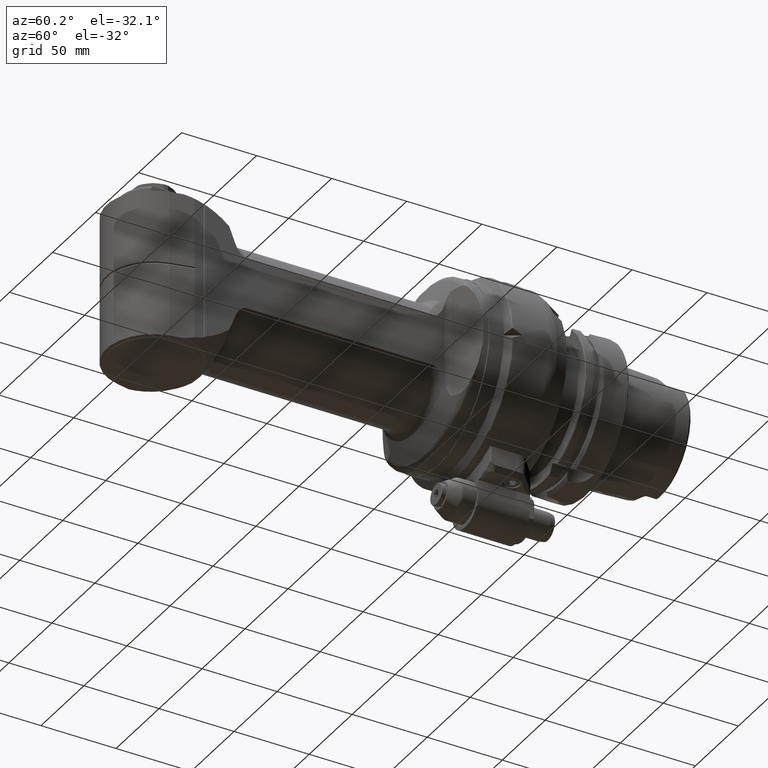
[diagram: clean part render]
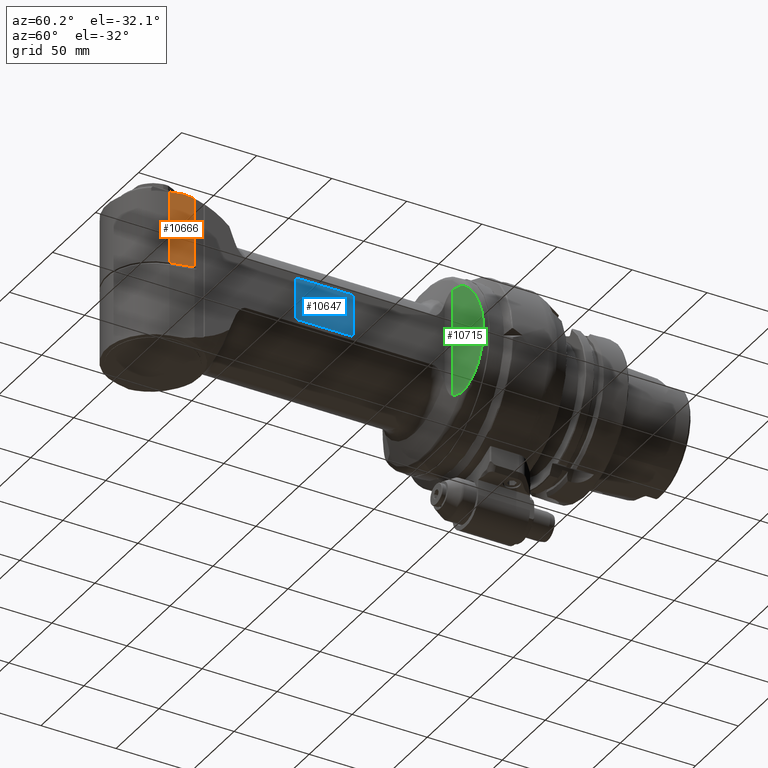
[diagram: same view with three faces highlighted in distinct colors, each labeled with its STEP entity id]
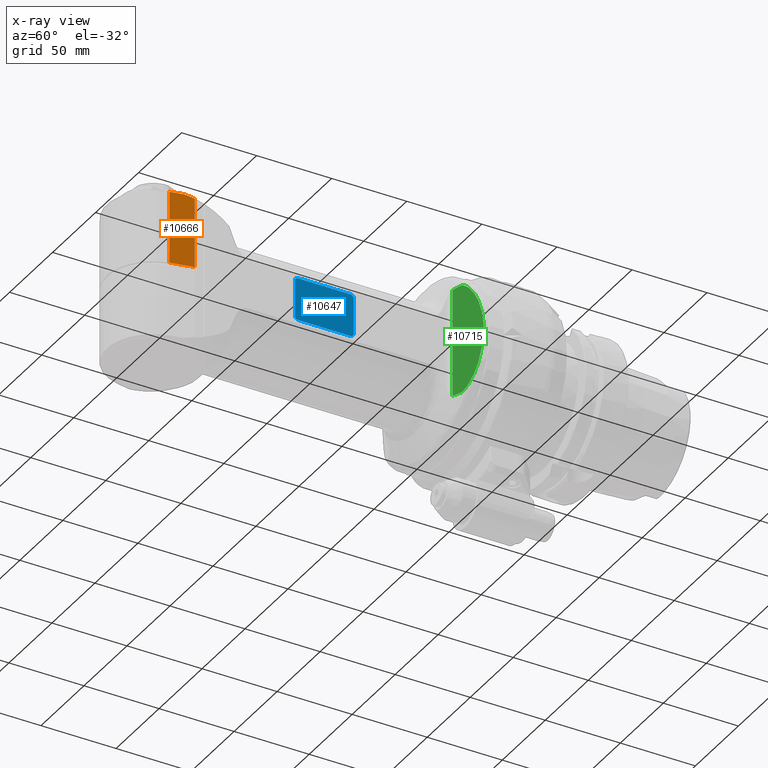
[diagram: x-ray of the same camera — body ghosted, the three highlighted faces saturated]
A machine part, auxiliary view with three faces highlighted in distinct colors.
The next image is the same camera in x-ray (body ghosted, the three faces saturated) — at least one of them is partly hidden behind the body in this view.
Their STEP definitions:

[orange] entity #10666 — the highlighted planar face has unit normal (-0.9781, 0.2079, -0).
#198=ELLIPSE('',#11733,1321.21671135135,153.398067958537);
#368=B_SPLINE_CURVE_WITH_KNOTS('',3,(#33116,#33117,#33118,#33119),
 .UNSPECIFIED.,.F.,.F.,(4,4),(0.,1.),.UNSPECIFIED.);
#1680=FACE_OUTER_BOUND('',#2369,.T.);
#2369=EDGE_LOOP('',(#9059,#9060,#9061,#9062,#9063,#9064,#9065));
#2758=(
BOUNDED_CURVE()
B_SPLINE_CURVE(2,(#33109,#33110,#33111),.UNSPECIFIED.,.F.,.F.)
B_SPLINE_CURVE_WITH_KNOTS((3,3),(-0.693281374622659,-0.608381004890938),
 .UNSPECIFIED.)
CURVE()
GEOMETRIC_REPRESENTATION_ITEM()
RATIONAL_B_SPLINE_CURVE((1.05649636805636,1.05761846282886,1.05761846282884))
REPRESENTATION_ITEM('')
);
#3301=LINE('',#33052,#3968);
#3302=LINE('',#33105,#3969);
#3303=LINE('',#33113,#3970);
#3304=LINE('',#33120,#3971);
#3968=VECTOR('',#14245,8.87507655635703);
#3969=VECTOR('',#14252,48.33431457505);
#3970=VECTOR('',#14255,46.54966316529);
#3971=VECTOR('',#14258,14.5000000000197);
#4911=VERTEX_POINT('',#33049);
#4912=VERTEX_POINT('',#33051);
#4925=VERTEX_POINT('',#33103);
#4926=VERTEX_POINT('',#33107);
#4927=VERTEX_POINT('',#33108);
#4928=VERTEX_POINT('',#33112);
#4929=VERTEX_POINT('',#33114);
#6343=EDGE_CURVE('',#4911,#4912,#3301,.T.);
#6358=EDGE_CURVE('',#4925,#4911,#3302,.T.);
#6359=EDGE_CURVE('',#4926,#4927,#2758,.T.);
#6360=EDGE_CURVE('',#4926,#4928,#3303,.T.);
#6361=EDGE_CURVE('',#4928,#4929,#198,.T.);
#6362=EDGE_CURVE('',#4929,#4912,#368,.T.);
#6363=EDGE_CURVE('',#4925,#4927,#3304,.T.);
#9059=ORIENTED_EDGE('',*,*,#6359,.F.);
#9060=ORIENTED_EDGE('',*,*,#6360,.T.);
#9061=ORIENTED_EDGE('',*,*,#6361,.T.);
#9062=ORIENTED_EDGE('',*,*,#6362,.T.);
#9063=ORIENTED_EDGE('',*,*,#6343,.F.);
#9064=ORIENTED_EDGE('',*,*,#6358,.F.);
#9065=ORIENTED_EDGE('',*,*,#6363,.T.);
#10177=PLANE('',#11732);
#10666=ADVANCED_FACE('',(#1680),#10177,.F.);
#11732=AXIS2_PLACEMENT_3D('',#33106,#14253,#14254);
#11733=AXIS2_PLACEMENT_3D('',#33115,#14256,#14257);
#14245=DIRECTION('',(-0.978147600733797,0.,0.207911690817799));
#14252=DIRECTION('',(-1.458298105748E-13,-1.,4.042661079441E-14));
#14253=DIRECTION('center_axis',(-0.207911690817799,0.,-0.978147600733797));
#14254=DIRECTION('ref_axis',(0.978147600733797,0.,-0.207911690817799));
#14255=DIRECTION('',(3.462905985927E-8,-0.999999999999999,5.597806079259E-10));
#14256=DIRECTION('center_axis',(0.207911690817799,0.,0.978147600733797));
#14257=DIRECTION('ref_axis',(-0.978147600733797,-2.68897119471548E-16,0.207911690817799));
#14258=DIRECTION('',(-0.978147596478923,-4.0929651729121E-8,0.207911710835405));
#33049=CARTESIAN_POINT('',(284.5083594153,-49.,30.32257562275));
#33051=CARTESIAN_POINT('',(275.8272245754,-49.,32.16780779572));
#33052=CARTESIAN_POINT('',(284.5083594153,-49.,30.32257562275));
#33103=CARTESIAN_POINT('',(284.5083594154,-0.6656854249494,30.32257562275));
#33105=CARTESIAN_POINT('',(284.5083594154,-0.6656854249494,30.32257562275));
#33106=CARTESIAN_POINT('Origin',(251.01662128,-70.8000024,37.44146432516));
#33107=CARTESIAN_POINT('',(269.559751383219,-0.640194885689366,33.4999999733124));
#33108=CARTESIAN_POINT('',(270.325219230476,-0.665685746731917,33.3372952608548));
#33109=CARTESIAN_POINT('Ctrl Pts',(269.559751436027,-0.64019525258686,33.5000003365944));
#33110=CARTESIAN_POINT('Ctrl Pts',(269.942891387115,-0.665685424966375,
33.4185614259527));
#33111=CARTESIAN_POINT('Ctrl Pts',(270.325219204704,-0.665685424965874,
33.3372951396151));
#33112=CARTESIAN_POINT('',(269.5597530195,-47.18985730412,33.5));
#33113=CARTESIAN_POINT('',(269.5597514076,-0.6401941388264,33.49999997394));
#33114=CARTESIAN_POINT('',(271.7592494227,-47.98986308027,33.03248260714));
#33115=CARTESIAN_POINT('Origin',(1499.23378480247,7.105427357601E-14,-227.875284170737));
#33116=CARTESIAN_POINT('Ctrl Pts',(271.7592494227,-47.98986308027,33.03248260714));
#33117=CARTESIAN_POINT('Ctrl Pts',(273.1139632922,-48.33195312284,32.74452928498));
#33118=CARTESIAN_POINT('Ctrl Pts',(274.4699790139,-48.66856440992,32.45629924562));
#33119=CARTESIAN_POINT('Ctrl Pts',(275.8272245754,-49.,32.16780779572));
#33120=CARTESIAN_POINT('',(284.5083594154,-0.6656854249494,30.32257562275));

[blue] entity #10647 — the highlighted planar face has unit normal (1, 0, -0).
#1044=CIRCLE('',#11692,2.);
#1045=CIRCLE('',#11693,2.);
#1046=CIRCLE('',#11694,2.);
#1047=CIRCLE('',#11695,2.);
#1661=FACE_OUTER_BOUND('',#2346,.T.);
#2346=EDGE_LOOP('',(#8909,#8910,#8911,#8912,#8913,#8914,#8915,#8916));
#3265=LINE('',#32660,#3932);
#3266=LINE('',#32664,#3933);
#3267=LINE('',#32668,#3934);
#3268=LINE('',#32671,#3935);
#3932=VECTOR('',#14137,35.);
#3933=VECTOR('',#14140,24.5);
#3934=VECTOR('',#14143,35.);
#3935=VECTOR('',#14146,24.5);
#4831=VERTEX_POINT('',#32656);
#4832=VERTEX_POINT('',#32657);
#4833=VERTEX_POINT('',#32659);
#4834=VERTEX_POINT('',#32661);
#4835=VERTEX_POINT('',#32663);
#4836=VERTEX_POINT('',#32665);
#4837=VERTEX_POINT('',#32667);
#4838=VERTEX_POINT('',#32669);
#6247=EDGE_CURVE('',#4831,#4832,#1044,.T.);
#6248=EDGE_CURVE('',#4831,#4833,#3265,.T.);
#6249=EDGE_CURVE('',#4834,#4833,#1045,.T.);
#6250=EDGE_CURVE('',#4834,#4835,#3266,.T.);
#6251=EDGE_CURVE('',#4836,#4835,#1046,.T.);
#6252=EDGE_CURVE('',#4836,#4837,#3267,.T.);
#6253=EDGE_CURVE('',#4838,#4837,#1047,.T.);
#6254=EDGE_CURVE('',#4838,#4832,#3268,.T.);
#8909=ORIENTED_EDGE('',*,*,#6247,.F.);
#8910=ORIENTED_EDGE('',*,*,#6248,.T.);
#8911=ORIENTED_EDGE('',*,*,#6249,.F.);
#8912=ORIENTED_EDGE('',*,*,#6250,.T.);
#8913=ORIENTED_EDGE('',*,*,#6251,.F.);
#8914=ORIENTED_EDGE('',*,*,#6252,.T.);
#8915=ORIENTED_EDGE('',*,*,#6253,.F.);
#8916=ORIENTED_EDGE('',*,*,#6254,.T.);
#10167=PLANE('',#11691);
#10647=ADVANCED_FACE('',(#1661),#10167,.T.);
#11691=AXIS2_PLACEMENT_3D('',#32655,#14133,#14134);
#11692=AXIS2_PLACEMENT_3D('',#32658,#14135,#14136);
#11693=AXIS2_PLACEMENT_3D('',#32662,#14138,#14139);
#11694=AXIS2_PLACEMENT_3D('',#32666,#14141,#14142);
#11695=AXIS2_PLACEMENT_3D('',#32670,#14144,#14145);
#14133=DIRECTION('center_axis',(0.,0.,1.));
#14134=DIRECTION('ref_axis',(1.,0.,0.));
#14135=DIRECTION('center_axis',(0.,0.,-1.));
#14136=DIRECTION('ref_axis',(0.,-1.,0.));
#14137=DIRECTION('',(1.,0.,0.));
#14138=DIRECTION('center_axis',(0.,0.,-1.));
#14139=DIRECTION('ref_axis',(1.,0.,0.));
#14140=DIRECTION('',(0.,1.,0.));
#14141=DIRECTION('center_axis',(0.,0.,-1.));
#14142=DIRECTION('ref_axis',(0.,1.,0.));
#14143=DIRECTION('',(-1.,0.,0.));
#14144=DIRECTION('center_axis',(0.,0.,-1.));
#14145=DIRECTION('ref_axis',(-1.,0.,0.));
#14146=DIRECTION('',(0.,-1.,0.));
#32655=CARTESIAN_POINT('Origin',(0.,0.,33.7));
#32656=CARTESIAN_POINT('',(165.8130967692,-14.25,33.7));
#32657=CARTESIAN_POINT('',(163.8130967692,-12.25,33.7));
#32658=CARTESIAN_POINT('Origin',(165.8130967692,-12.25,33.7));
#32659=CARTESIAN_POINT('',(200.8130967692,-14.25,33.7));
#32660=CARTESIAN_POINT('',(165.8130967692,-14.25,33.7));
#32661=CARTESIAN_POINT('',(202.8130967692,-12.25,33.7));
#32662=CARTESIAN_POINT('Origin',(200.8130967692,-12.25,33.7));
#32663=CARTESIAN_POINT('',(202.8130967692,12.25,33.7));
#32664=CARTESIAN_POINT('',(202.8130967692,-12.25,33.7));
#32665=CARTESIAN_POINT('',(200.8130967692,14.25,33.7));
#32666=CARTESIAN_POINT('Origin',(200.8130967692,12.25,33.7));
#32667=CARTESIAN_POINT('',(165.8130967692,14.25,33.7));
#32668=CARTESIAN_POINT('',(200.8130967692,14.25,33.7));
#32669=CARTESIAN_POINT('',(163.8130967692,12.25,33.7));
#32670=CARTESIAN_POINT('Origin',(165.8130967692,12.25,33.7));
#32671=CARTESIAN_POINT('',(163.8130967692,12.25,33.7));

[green] entity #10715 — the highlighted planar face has unit normal (-0.342, 0.9397, -0).
#202=ELLIPSE('',#11815,62.1233155911366,36.4919332928267);
#205=ELLIPSE('',#11823,62.1233155911366,36.4919332928267);
#206=ELLIPSE('',#11827,62.7864885761012,59.);
#378=B_SPLINE_CURVE_WITH_KNOTS('',3,(#33438,#33439,#33440,#33441,#33442,
#33443,#33444,#33445,#33446,#33447,#33448,#33449,#33450,#33451,#33452,#33453),
 .UNSPECIFIED.,.F.,.F.,(4,2,2,2,2,2,2,4),(9.68030428141339,9.99473310459946,
10.3614423896818,10.7714451747142,11.1814479597466,11.4943819981632,11.6409107028328,
11.6559211212458),.UNSPECIFIED.);
#379=B_SPLINE_CURVE_WITH_KNOTS('',3,(#33456,#33457,#33458,#33459,#33460,
#33461,#33462,#33463,#33464,#33465,#33466,#33467,#33468,#33469,#33470,#33471),
 .UNSPECIFIED.,.F.,.F.,(4,2,2,2,2,2,2,4),(-5.61335365538028,-5.29892483219421,
-4.93221554711183,-4.52221276207945,-4.11220997704707,-3.79927593863049,
-3.65274723396085,-3.63773681555202),.UNSPECIFIED.);
#1729=FACE_OUTER_BOUND('',#2419,.T.);
#2419=EDGE_LOOP('',(#9293,#9294,#9295,#9296,#9297,#9298));
#3323=LINE('',#33435,#3990);
#3990=VECTOR('',#14461,72.1242435735);
#4965=VERTEX_POINT('',#33352);
#4966=VERTEX_POINT('',#33370);
#4971=VERTEX_POINT('',#33413);
#4972=VERTEX_POINT('',#33415);
#4973=VERTEX_POINT('',#33437);
#4974=VERTEX_POINT('',#33454);
#6443=EDGE_CURVE('',#4966,#4965,#202,.T.);
#6452=EDGE_CURVE('',#4972,#4971,#205,.T.);
#6454=EDGE_CURVE('',#4972,#4965,#3323,.T.);
#6455=EDGE_CURVE('',#4973,#4971,#378,.T.);
#6456=EDGE_CURVE('',#4973,#4974,#206,.T.);
#6457=EDGE_CURVE('',#4974,#4966,#379,.T.);
#9293=ORIENTED_EDGE('',*,*,#6443,.T.);
#9294=ORIENTED_EDGE('',*,*,#6454,.F.);
#9295=ORIENTED_EDGE('',*,*,#6452,.T.);
#9296=ORIENTED_EDGE('',*,*,#6455,.F.);
#9297=ORIENTED_EDGE('',*,*,#6456,.T.);
#9298=ORIENTED_EDGE('',*,*,#6457,.T.);
#10187=PLANE('',#11826);
#10715=ADVANCED_FACE('',(#1729),#10187,.F.);
#11815=AXIS2_PLACEMENT_3D('',#33371,#14438,#14439);
#11823=AXIS2_PLACEMENT_3D('',#33416,#14455,#14456);
#11826=AXIS2_PLACEMENT_3D('',#33436,#14462,#14463);
#11827=AXIS2_PLACEMENT_3D('',#33455,#14464,#14465);
#14438=DIRECTION('center_axis',(0.939692620785573,0.,0.34202014332659));
#14439=DIRECTION('ref_axis',(0.34202014332659,-5.71880886426381E-16,-0.939692620785573));
#14455=DIRECTION('center_axis',(0.939692620785573,0.,0.34202014332659));
#14456=DIRECTION('ref_axis',(0.34202014332659,-5.71880886426381E-16,-0.939692620785573));
#14461=DIRECTION('',(0.,-1.,-1.507302304814E-14));
#14462=DIRECTION('center_axis',(-0.939692620785573,0.,-0.34202014332659));
#14463=DIRECTION('ref_axis',(0.34202014332659,0.,-0.939692620785573));
#14464=DIRECTION('center_axis',(0.939692620785573,0.,0.34202014332659));
#14465=DIRECTION('ref_axis',(0.34202014332659,0.,-0.939692620785573));
#33352=CARTESIAN_POINT('',(99.60515660574,-36.06212178675,36.63191942664));
#33370=CARTESIAN_POINT('',(97.40928456715,-36.44687063461,42.66502826867));
#33371=CARTESIAN_POINT('Origin',(96.3536899643328,0.,45.5652506040143));
#33413=CARTESIAN_POINT('',(97.40928456717,36.4468706346,42.66502826863));
#33415=CARTESIAN_POINT('',(99.60515660573,36.06212178675,36.6319194267));
#33416=CARTESIAN_POINT('Origin',(96.3536899643328,0.,45.5652506040143));
#33435=CARTESIAN_POINT('',(99.60515660574,36.06212178675,36.63191942665));
#33436=CARTESIAN_POINT('Origin',(88.88067399014,-70.8000024,66.09719324827));
#33437=CARTESIAN_POINT('',(92.87774563198,21.0547023408,55.11532916839));
#33438=CARTESIAN_POINT('Ctrl Pts',(92.8777456319847,21.0547023408004,55.1153291683928));
#33439=CARTESIAN_POINT('Ctrl Pts',(93.0162701216658,22.0509882551355,54.7347362609537));
#33440=CARTESIAN_POINT('Ctrl Pts',(93.1766609682443,23.1031873173945,54.2940660316935));
#33441=CARTESIAN_POINT('Ctrl Pts',(93.5555609640832,25.3362847851785,53.2530468488977));
#33442=CARTESIAN_POINT('Ctrl Pts',(93.7797510061978,26.5089003435447,52.6370897705233));
#33443=CARTESIAN_POINT('Ctrl Pts',(94.2477157974325,28.7068665471858,51.3513670735099));
#33444=CARTESIAN_POINT('Ctrl Pts',(94.541334184464,29.9393153925847,50.5446571852066));
#33445=CARTESIAN_POINT('Ctrl Pts',(95.1890023329149,32.2522221108636,48.7652035720434));
#33446=CARTESIAN_POINT('Ctrl Pts',(95.5430149970294,33.3327687858,47.7925617711907));
#33447=CARTESIAN_POINT('Ctrl Pts',(96.1722748637771,34.8890786509483,46.0636844963376));
#33448=CARTESIAN_POINT('Ctrl Pts',(96.5205375333585,35.6170940451115,45.1068406756266));
#33449=CARTESIAN_POINT('Ctrl Pts',(96.9988616177379,36.2413914188994,43.7926560546169));
#33450=CARTESIAN_POINT('Ctrl Pts',(97.1891560476256,36.4256948876265,43.2698264054542));
#33451=CARTESIAN_POINT('Ctrl Pts',(97.3731653038561,36.4478667739813,42.7642651289918));
#33452=CARTESIAN_POINT('Ctrl Pts',(97.3910477145289,36.4484286362866,42.7151336094629));
#33453=CARTESIAN_POINT('Ctrl Pts',(97.4092845671698,36.4468706345868,42.6650282686303));
#33454=CARTESIAN_POINT('',(92.87774563198,-21.0547023408,55.11532916839));
#33455=CARTESIAN_POINT('Origin',(112.938084901125,0.,0.));
#33456=CARTESIAN_POINT('Ctrl Pts',(92.8777456319847,-21.0547023408004,55.1153291683928));
#33457=CARTESIAN_POINT('Ctrl Pts',(93.0162701216658,-22.0509882551355,54.7347362609537));
#33458=CARTESIAN_POINT('Ctrl Pts',(93.1766609682443,-23.1031873173945,54.2940660316935));
#33459=CARTESIAN_POINT('Ctrl Pts',(93.5555609640832,-25.3362847851785,53.2530468488977));
#33460=CARTESIAN_POINT('Ctrl Pts',(93.7797510061978,-26.5089003435447,52.6370897705233));
#33461=CARTESIAN_POINT('Ctrl Pts',(94.2477157974325,-28.7068665471858,51.3513670735099));
#33462=CARTESIAN_POINT('Ctrl Pts',(94.541334184464,-29.9393153925847,50.5446571852066));
#33463=CARTESIAN_POINT('Ctrl Pts',(95.1890023329149,-32.2522221108636,48.7652035720434));
#33464=CARTESIAN_POINT('Ctrl Pts',(95.5430149970294,-33.3327687858,47.7925617711907));
#33465=CARTESIAN_POINT('Ctrl Pts',(96.1722748637771,-34.8890786509483,46.0636844963376));
#33466=CARTESIAN_POINT('Ctrl Pts',(96.5205375333585,-35.6170940451115,45.1068406756266));
#33467=CARTESIAN_POINT('Ctrl Pts',(96.9988616177379,-36.2413914188994,43.7926560546169));
#33468=CARTESIAN_POINT('Ctrl Pts',(97.1891560476256,-36.4256948876265,43.2698264054542));
#33469=CARTESIAN_POINT('Ctrl Pts',(97.3731653038513,-36.4478667739807,42.7642651290049));
#33470=CARTESIAN_POINT('Ctrl Pts',(97.3910477145189,-36.4484286362863,42.7151336094904));
#33471=CARTESIAN_POINT('Ctrl Pts',(97.4092845671545,-36.446870634588,42.6650282686723));